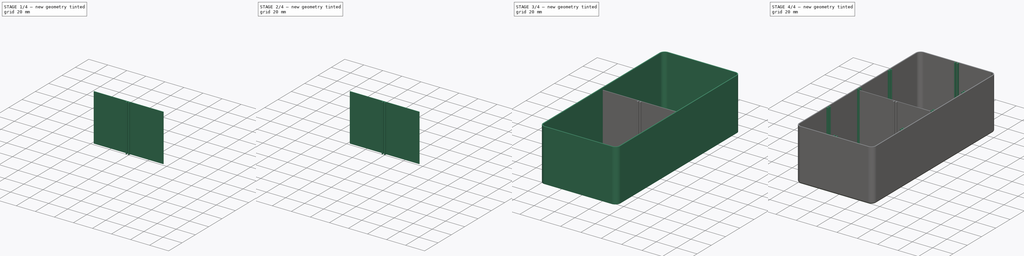
[diagram: build sequence overview — one tinted view per stage of 4, left to right]
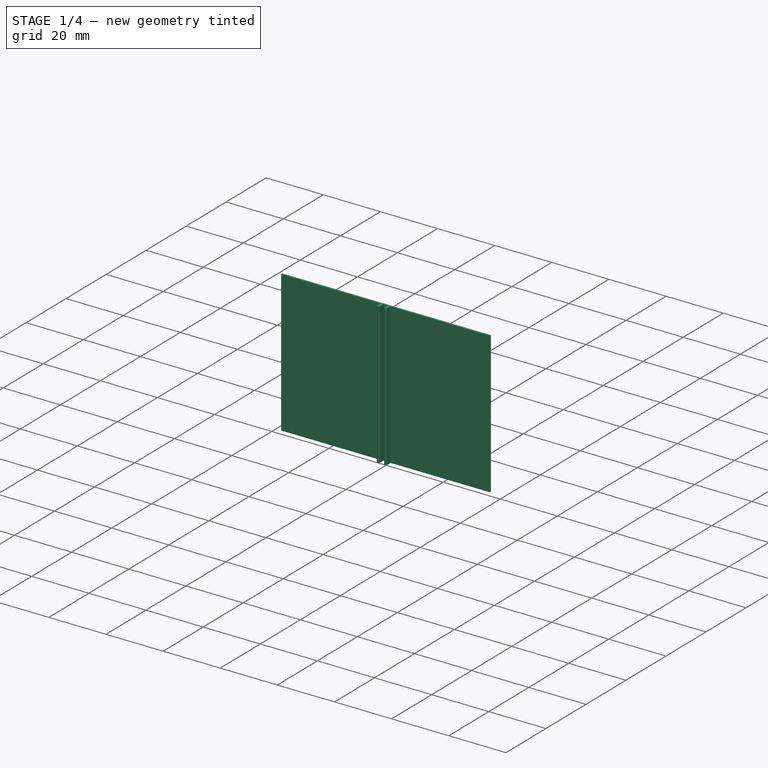
[diagram: stage 1 of 4 — iso view after this stage's code; geometry added in this stage tinted green]
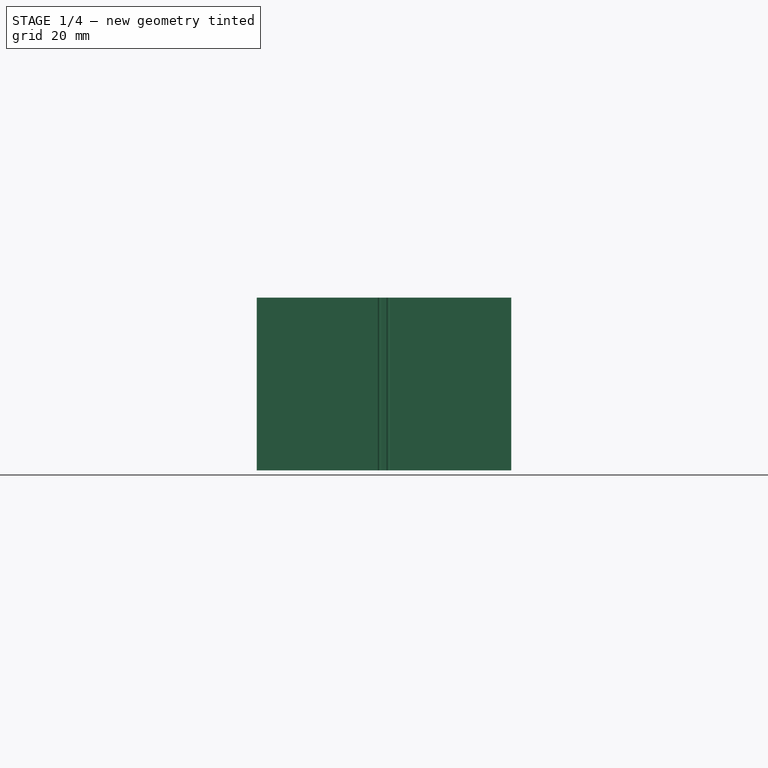
[diagram: stage 1 of 4 — front view after this stage's code; geometry added in this stage tinted green]
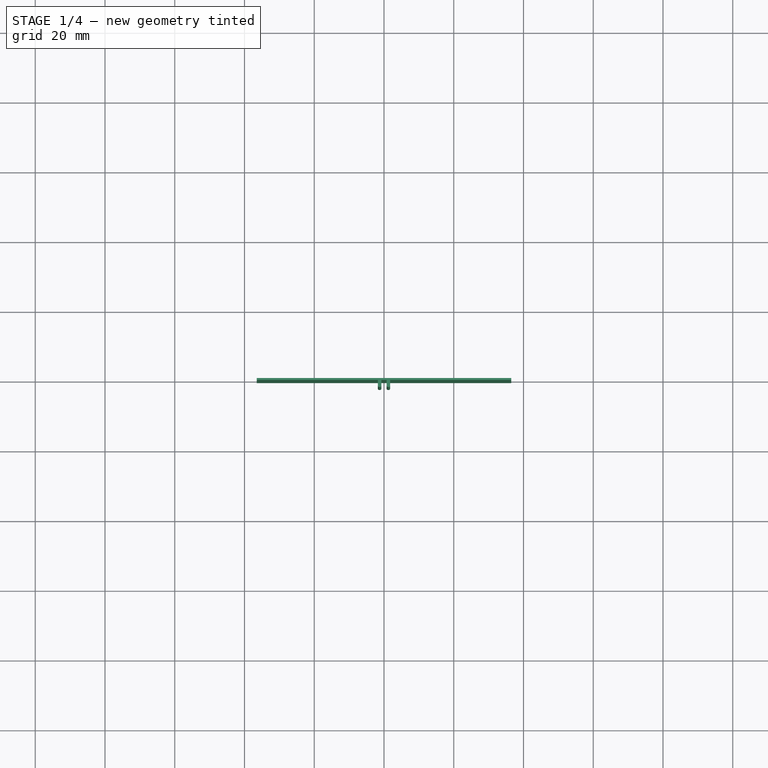
[diagram: stage 1 of 4 — top view after this stage's code; geometry added in this stage tinted green]
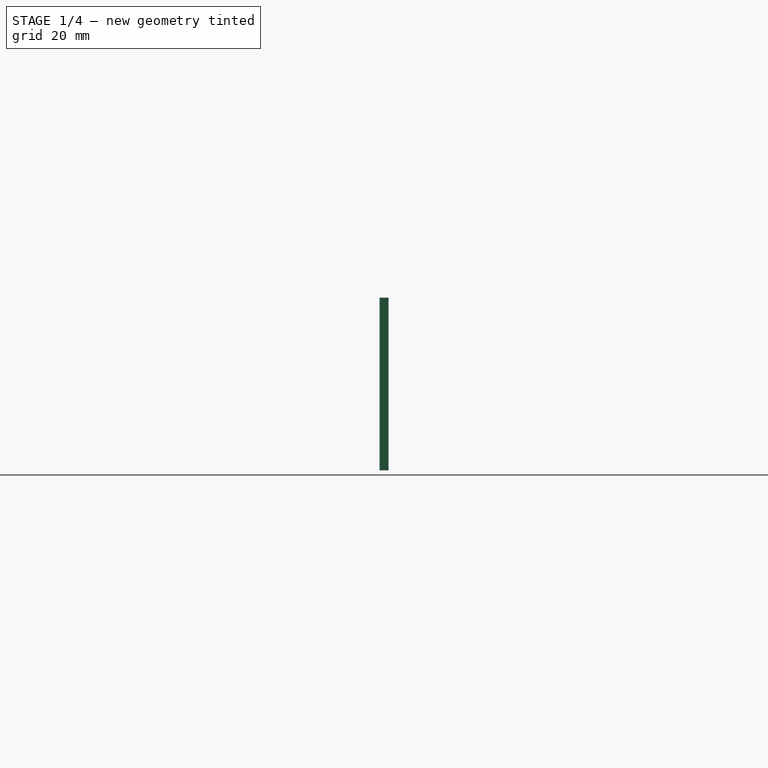
[diagram: stage 1 of 4 — right view after this stage's code; geometry added in this stage tinted green]
FCSTD DOCUMENT  (FreeCAD 0.20R29177 +426 (Git))
Label: 宜家开发板塑料盒-内隔盒
License: All rights reserved
LicenseURL: http://en.wikipedia.org/wiki/All_rights_reserved
objects: Sketcher::SketchObject×5, PartDesign::Pad×5, PartDesign::Fillet×5, PartDesign::Body×5, App::Part×4, PartDesign::Thickness×1
note: 32 computed .brp shape members not serialized (recipe doc carries the construction recipe); baked Part::Feature solids carry a one-line shape summary decoded from their .brp

FEATURE [PartDesign::Body] Body001
  Group = -> [Sketch002,Pad002,Fillet004]
  Origin = -> Origin003
  Placement = pos=(0,43,0) rot=(0,0,1;0rad)
  Tip = -> Fillet004
FEATURE [App::Part] Part001  label="短插片-无槽"
  Group = -> [Body001]
  Origin = -> Origin002
  Placement = pos=(0,0,-241) rot=(0,0,1;0rad)
FEATURE [Sketcher::SketchObject] Sketch003
  FullyConstrained = true
  MapMode = 5
  Support = -> [XY_Plane005]
  sketch-geometry (4):
    g0: LineSegment StartX=-36.5 StartY=0.3 StartZ=0 EndX=36.5 EndY=0.3 EndZ=0
    g1: LineSegment StartX=36.5 StartY=0.3 StartZ=0 EndX=36.5 EndY=-0.3 EndZ=0
    g2: LineSegment StartX=36.5 StartY=-0.3 StartZ=0 EndX=-36.5 EndY=-0.3 EndZ=0
    g3: LineSegment StartX=-36.5 StartY=-0.3 StartZ=0 EndX=-36.5 EndY=0.3 EndZ=0
  constraints (11):
    c: Coincident(g0,g1)
    c: Coincident(g1,g2)
    c: Coincident(g2,g3)
    c: Coincident(g3,g0)
    c: Horizontal(g0)
    c: Horizontal(g2)
    c: Vertical(g1)
    c: Vertical(g3)
    c: Symmetric(g0,g2,g-1)
    c: DistanceY(g3,g3) = 0.6
    c: DistanceX(g0,g0) = 73
FEATURE [PartDesign::Pad] Pad003
  Direction = (0,0,1)
  Length = 49.5
  Length2 = 10
  Profile = -> Sketch003
  ReferenceAxis = -> Sketch003 [N_Axis]
  Type = 0
FEATURE [Sketcher::SketchObject] Sketch004
  ExternalGeometry = -> [Pad003]
  FullyConstrained = true
  MapMode = 5
  Placement = pos=(0,-0.3,0) rot=(1,0,0;1.5708rad)
  Support = -> [Pad003]
  sketch-geometry (8):
    g0: LineSegment StartX=-1.75 StartY=49.5 StartZ=0 EndX=-0.75 EndY=49.5 EndZ=0
    g1: LineSegment StartX=-0.75 StartY=49.5 StartZ=0 EndX=-0.75 EndY=0 EndZ=0
    g2: LineSegment StartX=-0.75 StartY=0 StartZ=0 EndX=-1.75 EndY=0 EndZ=0
    g3: LineSegment StartX=-1.75 StartY=0 StartZ=0 EndX=-1.75 EndY=49.5 EndZ=0
    g4: LineSegment StartX=0.75 StartY=49.5 StartZ=0 EndX=1.75 EndY=49.5 EndZ=0
    g5: LineSegment StartX=1.75 StartY=49.5 StartZ=0 EndX=1.75 EndY=-1.04876e-11 EndZ=0
    g6: LineSegment StartX=1.75 StartY=-1.04876e-11 StartZ=0 EndX=0.75 EndY=-1.04876e-11 EndZ=0
    g7: LineSegment StartX=0.75 StartY=-1.04876e-11 StartZ=0 EndX=0.75 EndY=49.5 EndZ=0
  constraints (23):
    c: Coincident(g0,g1)
    c: Coincident(g1,g2)
    c: Coincident(g2,g3)
    c: Coincident(g3,g0)
    c: Horizontal(g0)
    c: Horizontal(g2)
    c: Vertical(g1)
    c: Vertical(g3)
    c: Coincident(g4,g5)
    c: Coincident(g5,g6)
    c: Coincident(g6,g7)
    c: Coincident(g7,g4)
    c: Horizontal(g4)
    c: Horizontal(g6)
    c: Vertical(g5)
    c: Vertical(g7)
    c: Equal(g0,g4)
    c: Equal(g1,g7)
    c: PointOnObject(g1,g-5)
    c: PointOnObject(g0,g-4)
    c: Distance(g0,g7) = 1.5
    c: Symmetric(g0,g4,g-2)
    c: DistanceX(g6,g6) = 1
FEATURE [PartDesign::Pad] Pad004
  BaseFeature = -> Pad003
  Direction = (0,-1,2e-16)
  Length = 2
  Length2 = 10
  Profile = -> Sketch004
  ReferenceAxis = -> Sketch004 [N_Axis]
  Type = 0
FEATURE [PartDesign::Fillet] Fillet005
  Base = -> Pad004 [Edge37,Edge40,Edge39,Edge38]
  BaseFeature = -> Pad004
  Radius = 0.4
  SupportTransform = false
  UseAllEdges = false
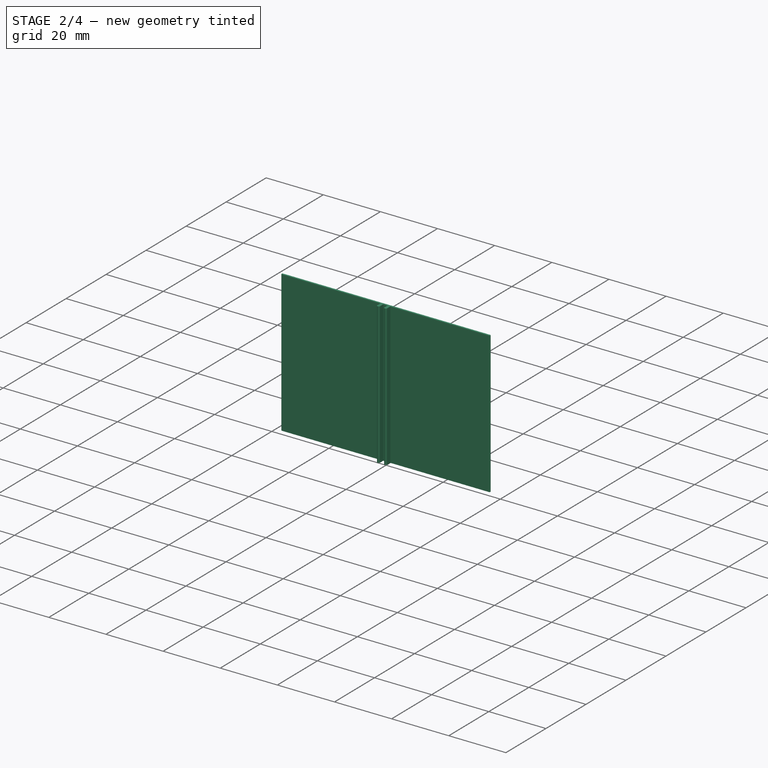
[diagram: stage 2 of 4 — iso view after this stage's code; geometry added in this stage tinted green]
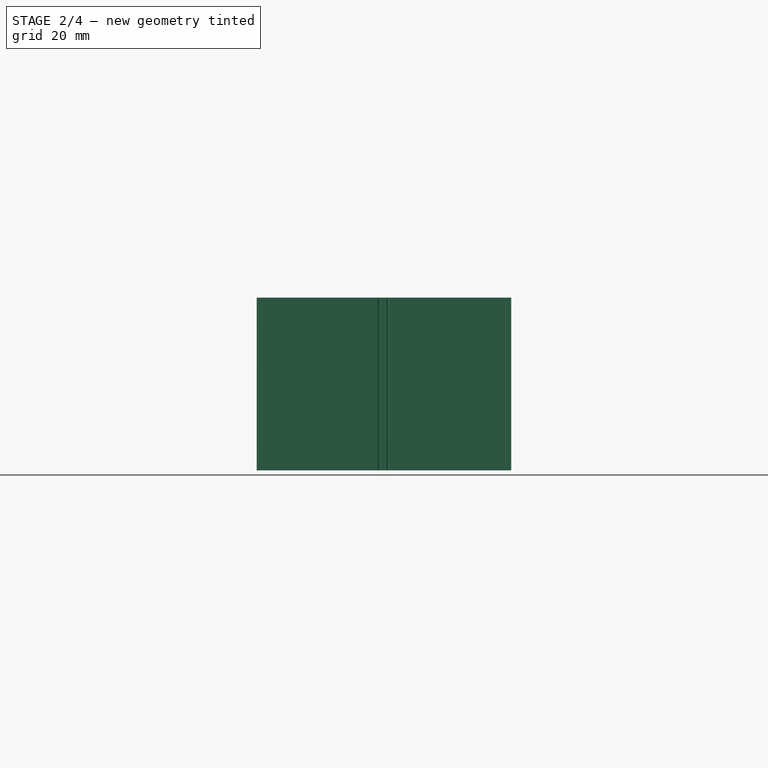
[diagram: stage 2 of 4 — front view after this stage's code; geometry added in this stage tinted green]
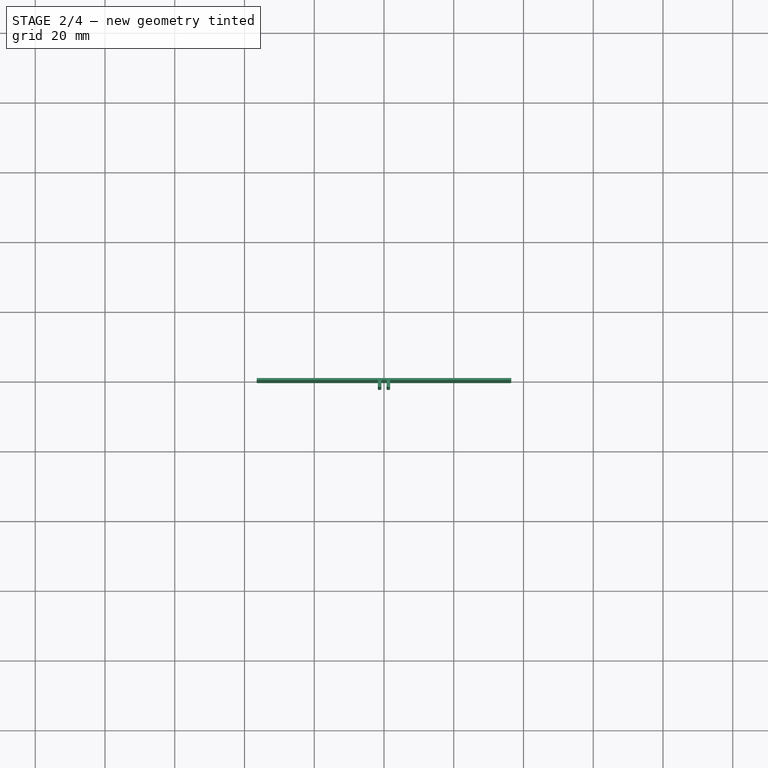
[diagram: stage 2 of 4 — top view after this stage's code; geometry added in this stage tinted green]
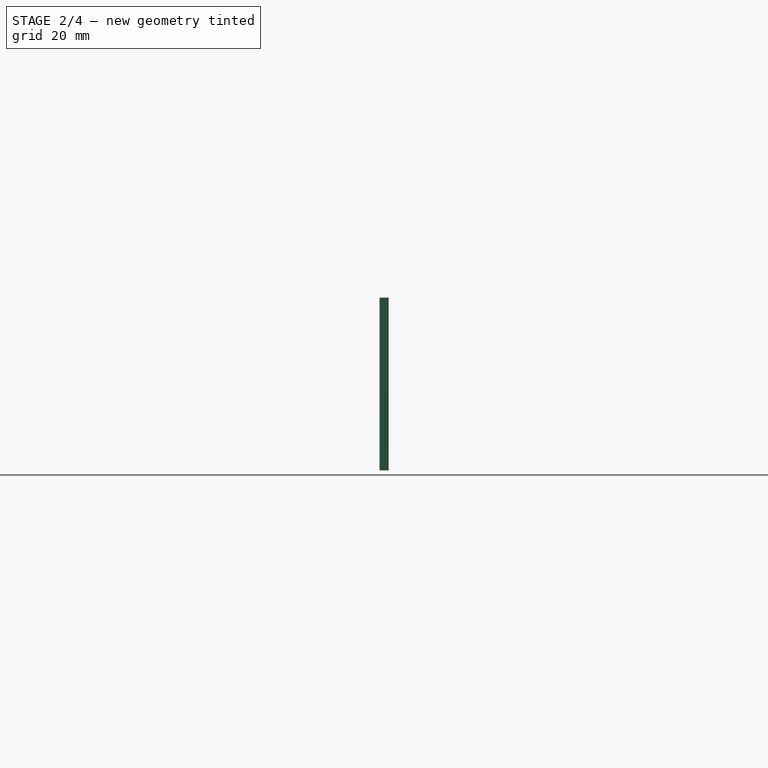
[diagram: stage 2 of 4 — right view after this stage's code; geometry added in this stage tinted green]
FEATURE [Sketcher::SketchObject] Sketch002
  FullyConstrained = true
  MapMode = 5
  Support = -> [XY_Plane003]
  sketch-geometry (4):
    g0: LineSegment StartX=36.5 StartY=-0.3 StartZ=0 EndX=-36.5 EndY=-0.3 EndZ=0
    g1: LineSegment StartX=-36.5 StartY=-0.3 StartZ=0 EndX=-36.5 EndY=0.3 EndZ=0
    g2: LineSegment StartX=-36.5 StartY=0.3 StartZ=0 EndX=36.5 EndY=0.3 EndZ=0
    g3: LineSegment StartX=36.5 StartY=0.3 StartZ=0 EndX=36.5 EndY=-0.3 EndZ=0
  constraints (10):
    c: Coincident(g0,g1)
    c: Coincident(g1,g2)
    c: Coincident(g2,g3)
    c: Coincident(g3,g0)
    c: Horizontal(g2)
    c: Vertical(g3)
    c: Symmetric(g0,g0,g-2)
    c: Symmetric(g0,g1,g-1)
    c: DistanceY(g1,g1) = 0.6
    c: DistanceX(g2,g2) = 73
FEATURE [PartDesign::Pad] Pad002
  Direction = (0,0,1)
  Length = 49.5
  Length2 = 10
  Profile = -> Sketch002
  ReferenceAxis = -> Sketch002 [N_Axis]
  Type = 0
FEATURE [PartDesign::Body] Body
  Group = -> [Sketch,Pad,Thickness,Sketch001,Pad001,Fillet,Fillet003]
  Origin = -> Origin
  Placement = pos=(0,0,-295) rot=(0,0,1;0rad)
  Tip = -> Fillet003
FEATURE [App::Part] Part  label="盒体"
  Group = -> [Body]
  Origin = -> Origin001
FEATURE [PartDesign::Fillet] Fillet004
  Base = -> Pad002 [Edge5,Edge2,Edge10,Face6,Edge4,Edge9,Edge3,Edge8,Edge1]
  BaseFeature = -> Pad002
  Radius = 0.2
  SupportTransform = false
  UseAllEdges = false
FEATURE [PartDesign::Fillet] Fillet006
  Base = -> Fillet005 [Edge39,Edge28,Edge27,Edge29]
  BaseFeature = -> Fillet005
  Radius = 0.2
  SupportTransform = false
  UseAllEdges = false
FEATURE [PartDesign::Body] Body002
  Group = -> [Sketch003,Pad003,Sketch004,Pad004,Fillet005,Fillet006]
  Origin = -> Origin005
  Placement = pos=(0,-44,-241) rot=(0,0,1;0rad)
  Tip = -> Fillet006
FEATURE [PartDesign::Body] Body003
  Origin = -> Origin007
FEATURE [App::Part] Part003  label="长插片-无槽"
  Group = -> [Body003]
  Origin = -> Origin006
FEATURE [PartDesign::Body] Body004
  Origin = -> Origin008
FEATURE [App::Part] Part002  label="短插片-单槽"
  Group = -> [Body002,Body004]
  Origin = -> Origin004
  Placement = pos=(0,44,0) rot=(0,0,1;0rad)
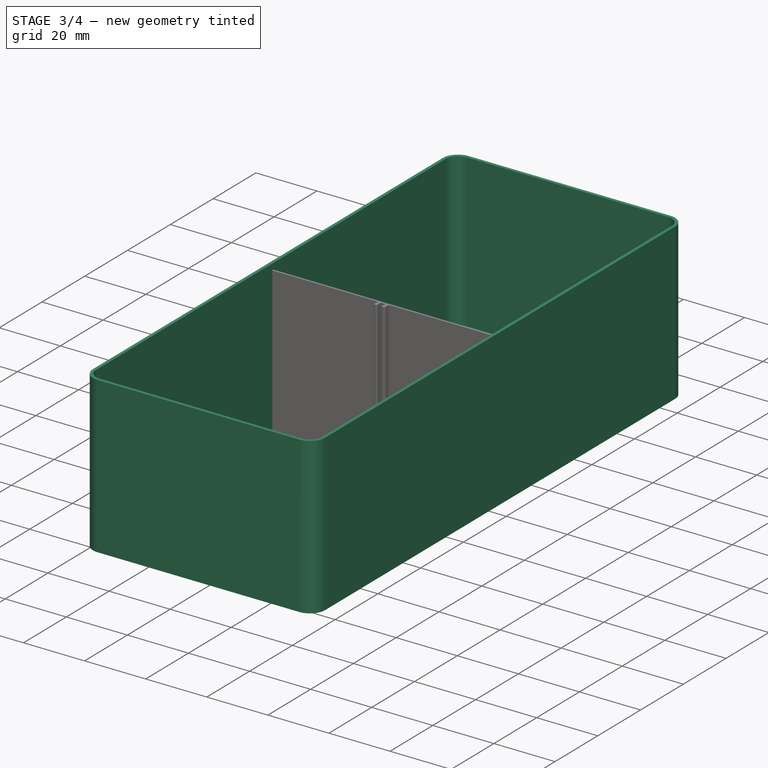
[diagram: stage 3 of 4 — iso view after this stage's code; geometry added in this stage tinted green]
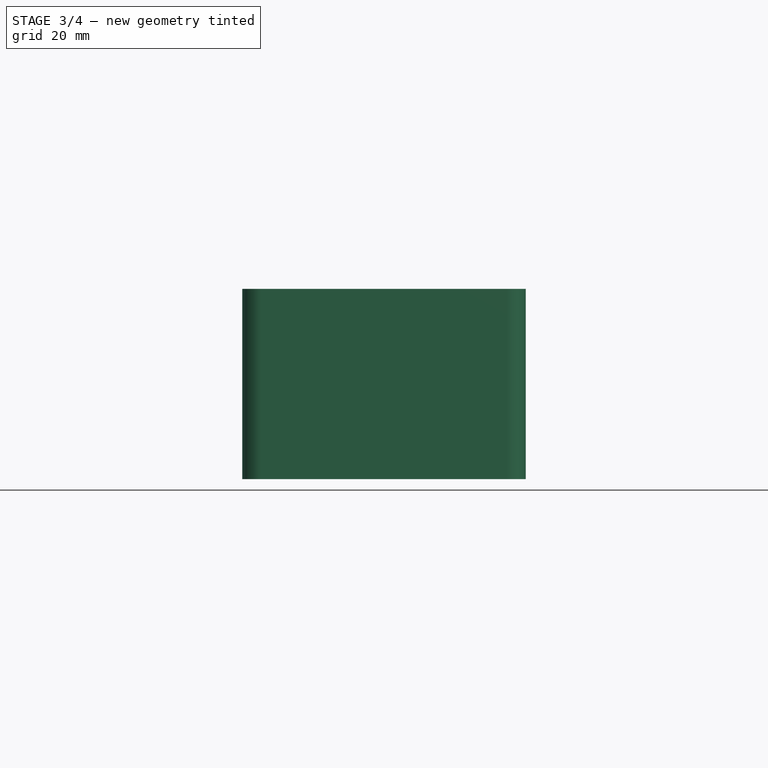
[diagram: stage 3 of 4 — front view after this stage's code; geometry added in this stage tinted green]
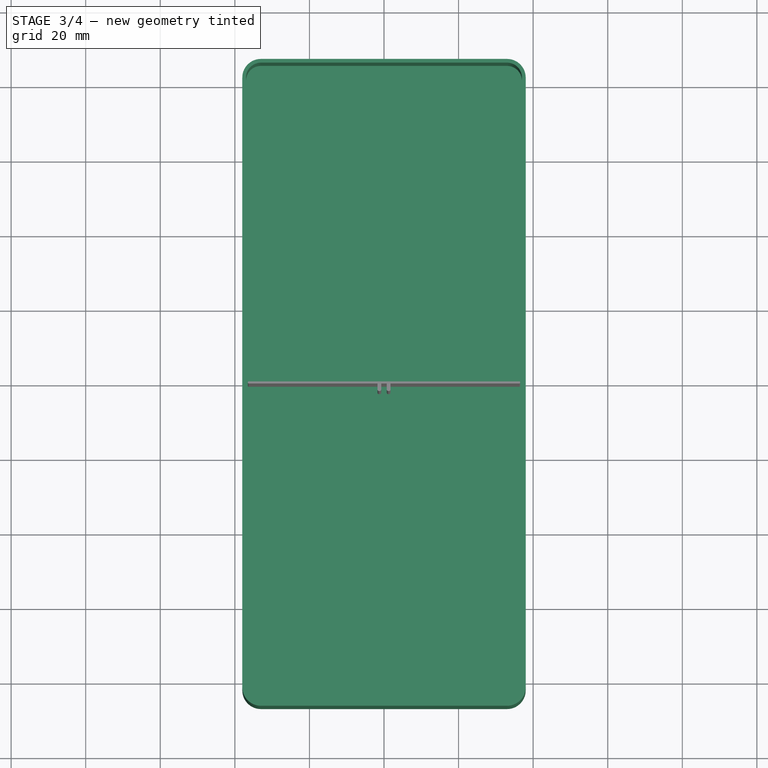
[diagram: stage 3 of 4 — top view after this stage's code; geometry added in this stage tinted green]
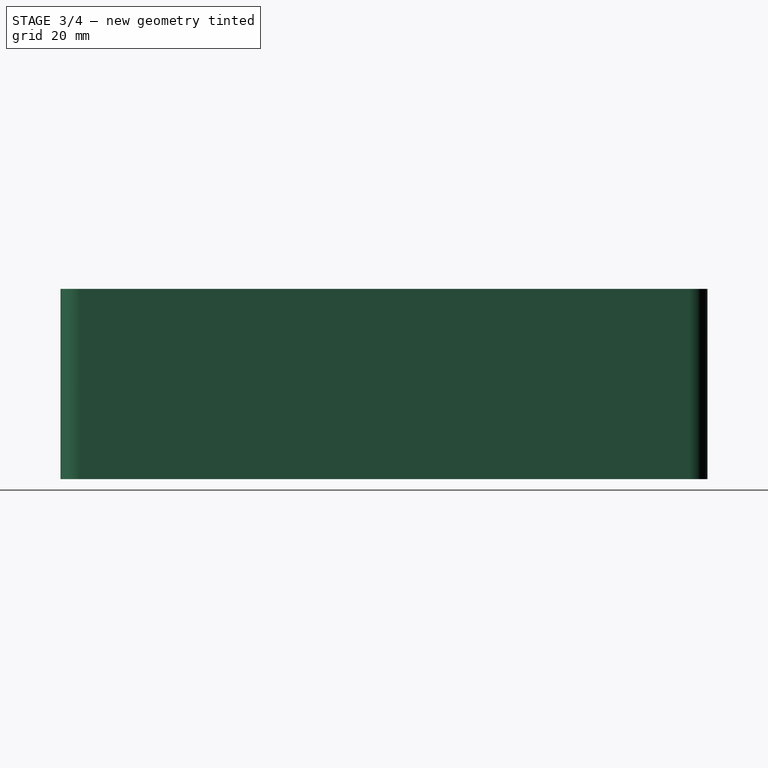
[diagram: stage 3 of 4 — right view after this stage's code; geometry added in this stage tinted green]
FEATURE [Sketcher::SketchObject] Sketch
  FullyConstrained = true
  MapMode = 5
  Support = -> [XY_Plane]
  sketch-geometry (8):
    g0: LineSegment StartX=-33 StartY=86.75 StartZ=0 EndX=33 EndY=86.75 EndZ=0
    g1: LineSegment StartX=38 StartY=81.75 StartZ=0 EndX=38 EndY=-81.75 EndZ=0
    g2: LineSegment StartX=33 StartY=-86.75 StartZ=0 EndX=-33 EndY=-86.75 EndZ=0
    g3: LineSegment StartX=-38 StartY=-81.75 StartZ=0 EndX=-38 EndY=81.75 EndZ=0
    g4: ArcOfCircle CenterX=-33 CenterY=-81.75 CenterZ=0 NormalX=0 NormalY=0 NormalZ=1 AngleXU=0 Radius=5 StartAngle=3.14159 EndAngle=4.71239
    g5: ArcOfCircle CenterX=33 CenterY=-81.75 CenterZ=0 NormalX=0 NormalY=0 NormalZ=1 AngleXU=0 Radius=5 StartAngle=4.71239 EndAngle=6.28319
    g6: ArcOfCircle CenterX=33 CenterY=81.75 CenterZ=0 NormalX=0 NormalY=0 NormalZ=1 AngleXU=0 Radius=5 StartAngle=-9e-16 EndAngle=1.5708
    g7: ArcOfCircle CenterX=-33 CenterY=81.75 CenterZ=0 NormalX=0 NormalY=0 NormalZ=1 AngleXU=0 Radius=5 StartAngle=1.5708 EndAngle=3.14159
  constraints (19):
    c: Horizontal(g0)
    c: Horizontal(g2)
    c: Vertical(g1)
    c: Vertical(g3)
    c: Tangent(g2,g4) = 1.5708
    c: Tangent(g3,g4) = 1.5708
    c: Tangent(g2,g5) = 1.5708
    c: Tangent(g1,g5) = 1.5708
    c: Tangent(g0,g6) = 1.5708
    c: Tangent(g1,g6) = 1.5708
    c: Tangent(g3,g7) = 1.5708
    c: Tangent(g0,g7) = 1.5708
    c: Radius(g7) = 5
    c: Radius(g4) = 5
    c: Radius(g5) = 5
    c: Radius(g6) = 5
    c: Distance(g0,g2) = 173.5
    c: Distance(g1,g3) = 76
    c: Symmetric(g2,g0,g-1)
FEATURE [PartDesign::Pad] Pad
  Direction = (0,0,1)
  Length = 51
  Length2 = 10
  Profile = -> Sketch
  ReferenceAxis = -> Sketch [N_Axis]
  Type = 0
FEATURE [PartDesign::Thickness] Thickness
  Base = -> Pad [Face10]
  BaseFeature = -> Pad
  Intersection = false
  Join = 0
  Mode = 0
  Reversed = true
  SupportTransform = false
  Value = 1
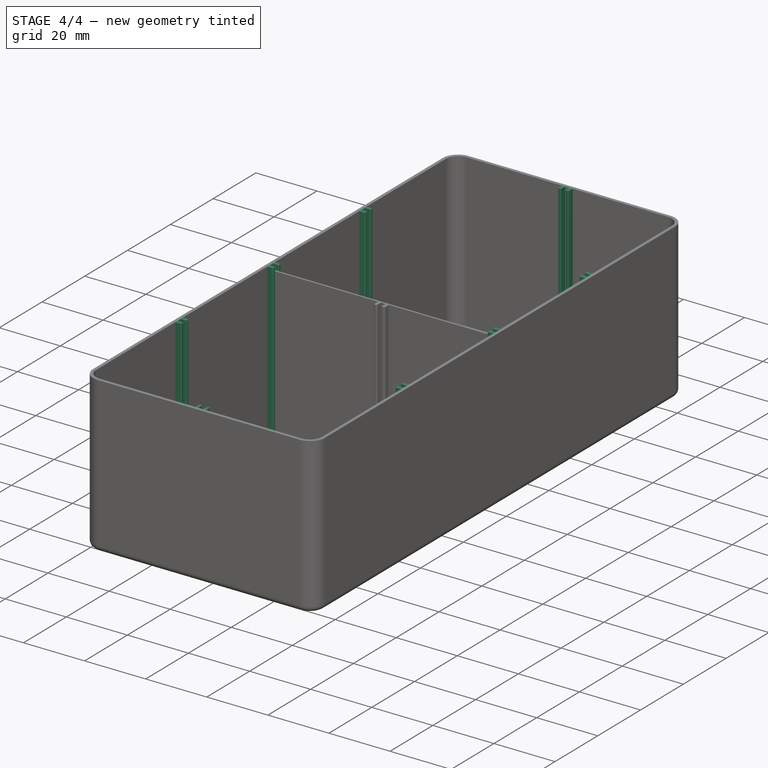
[diagram: stage 4 of 4 — iso view after this stage's code; geometry added in this stage tinted green]
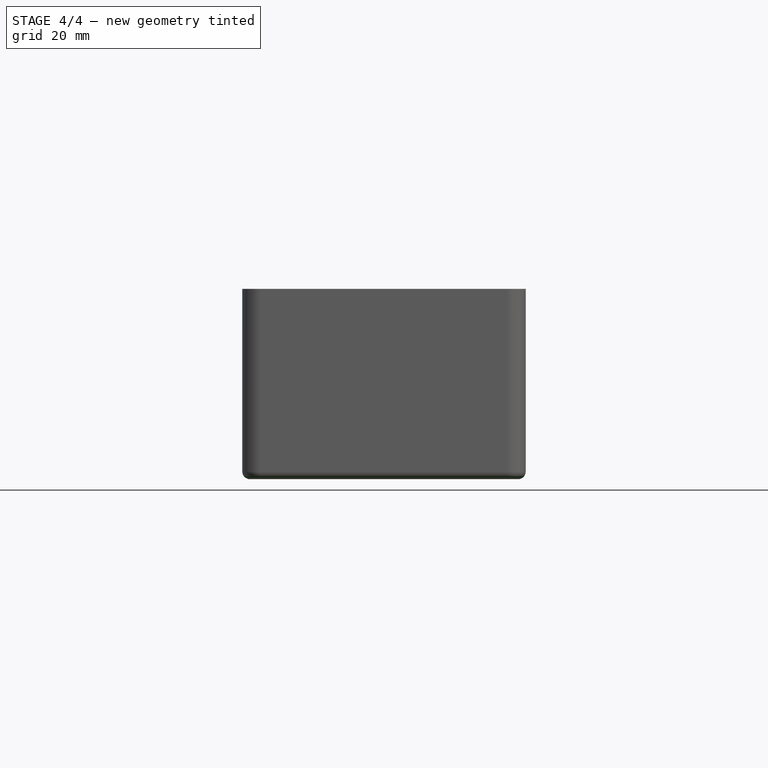
[diagram: stage 4 of 4 — front view after this stage's code; geometry added in this stage tinted green]
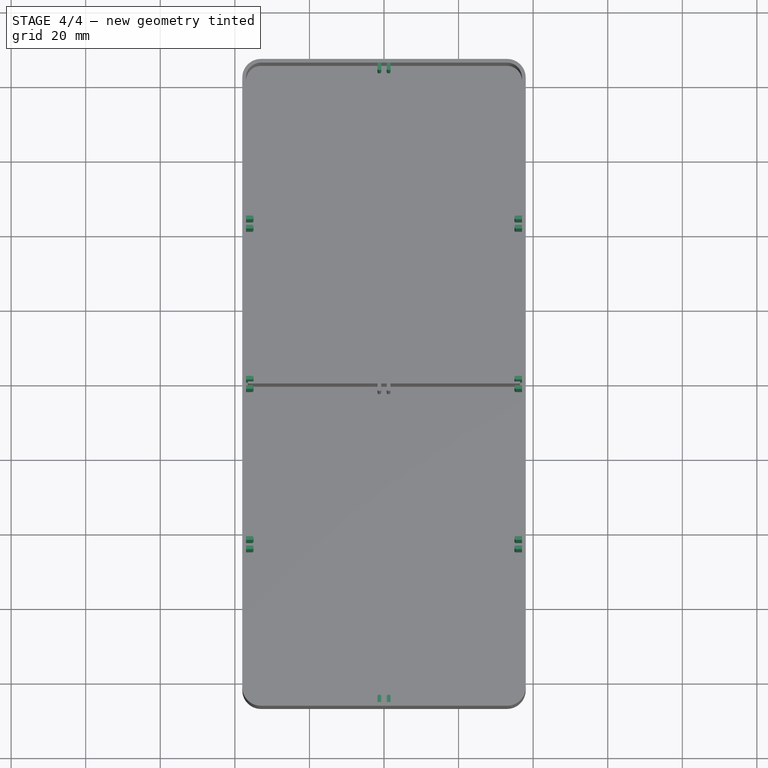
[diagram: stage 4 of 4 — top view after this stage's code; geometry added in this stage tinted green]
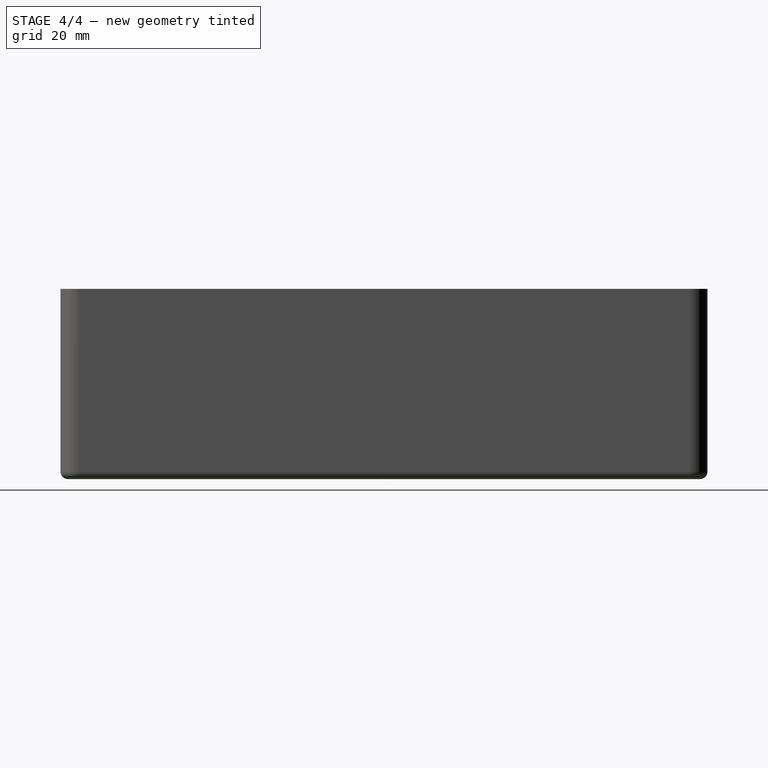
[diagram: stage 4 of 4 — right view after this stage's code; geometry added in this stage tinted green]
FEATURE [Sketcher::SketchObject] Sketch001
  ExternalGeometry = -> [Thickness]
  FullyConstrained = true
  MapMode = 5
  Placement = pos=(0,0,1) rot=(0,0,1;0rad)
  Support = -> [Thickness]
  sketch-geometry (64):
    g0: LineSegment StartX=-37 StartY=43.75 StartZ=0 EndX=-35 EndY=43.75 EndZ=0
    g1: LineSegment StartX=-35 StartY=43.75 StartZ=0 EndX=-35 EndY=44.75 EndZ=0
    g2: LineSegment StartX=-35 StartY=44.75 StartZ=0 EndX=-37 EndY=44.75 EndZ=0
    g3: LineSegment StartX=-37 StartY=44.75 StartZ=0 EndX=-37 EndY=43.75 EndZ=0
    g4: LineSegment StartX=-37 StartY=42.25 StartZ=0 EndX=-35 EndY=42.25 EndZ=0
    g5: LineSegment StartX=-35 StartY=42.25 StartZ=0 EndX=-35 EndY=41.25 EndZ=0
    g6: LineSegment StartX=-35 StartY=41.25 StartZ=0 EndX=-37 EndY=41.25 EndZ=0
    g7: LineSegment StartX=-37 StartY=41.25 StartZ=0 EndX=-37 EndY=42.25 EndZ=0
    g8: LineSegment StartX=35 StartY=44.75 StartZ=0 EndX=37 EndY=44.75 EndZ=0
    g9: LineSegment StartX=37 StartY=44.75 StartZ=0 EndX=37 EndY=43.75 EndZ=0
    g10: LineSegment StartX=37 StartY=43.75 StartZ=0 EndX=35 EndY=43.75 EndZ=0
    g11: LineSegment StartX=35 StartY=43.75 StartZ=0 EndX=35 EndY=44.75 EndZ=0
    g12: LineSegment StartX=35 StartY=42.25 StartZ=0 EndX=37 EndY=42.25 EndZ=0
    g13: LineSegment StartX=37 StartY=42.25 StartZ=0 EndX=37 EndY=41.25 EndZ=0
    g14: LineSegment StartX=37 StartY=41.25 StartZ=0 EndX=35 EndY=41.25 EndZ=0
    g15: LineSegment StartX=35 StartY=41.25 StartZ=0 EndX=35 EndY=42.25 EndZ=0
    g16: LineSegment StartX=-37 StartY=-41.25 StartZ=0 EndX=-35 EndY=-41.25 EndZ=0
    g17: LineSegment StartX=-35 StartY=-41.25 StartZ=0 EndX=-35 EndY=-42.25 EndZ=0
    g18: LineSegment StartX=-35 StartY=-42.25 StartZ=0 EndX=-37 EndY=-42.25 EndZ=0
    g19: LineSegment StartX=-37 StartY=-42.25 StartZ=0 EndX=-37 EndY=-41.25 EndZ=0
    g20: LineSegment StartX=-37 StartY=-43.75 StartZ=0 EndX=-35 EndY=-43.75 EndZ=0
    g21: LineSegment StartX=-35 StartY=-43.75 StartZ=0 EndX=-35 EndY=-44.75 EndZ=0
    g22: LineSegment StartX=-35 StartY=-44.75 StartZ=0 EndX=-37 EndY=-44.75 EndZ=0
    g23: LineSegment StartX=-37 StartY=-44.75 StartZ=0 EndX=-37 EndY=-43.75 EndZ=0
    g24: LineSegment StartX=-37 StartY=1.75 StartZ=0 EndX=-35 EndY=1.75 EndZ=0
    g25: LineSegment StartX=-35 StartY=1.75 StartZ=0 EndX=-35 EndY=0.75 EndZ=0
    g26: LineSegment StartX=-35 StartY=0.75 StartZ=0 EndX=-37 EndY=0.75 EndZ=0
    g27: LineSegment StartX=-37 StartY=0.75 StartZ=0 EndX=-37 EndY=1.75 EndZ=0
    g28: LineSegment StartX=-37 StartY=-0.75 StartZ=0 EndX=-35 EndY=-0.75 EndZ=0
    g29: LineSegment StartX=-35 StartY=-0.75 StartZ=0 EndX=-35 EndY=-1.75 EndZ=0
    g30: LineSegment StartX=-35 StartY=-1.75 StartZ=0 EndX=-37 EndY=-1.75 EndZ=0
    g31: LineSegment StartX=-37 StartY=-1.75 StartZ=0 EndX=-37 EndY=-0.75 EndZ=0
    g32: LineSegment StartX=35 StartY=1.75 StartZ=0 EndX=37 EndY=1.75 EndZ=0
    g33: LineSegment StartX=37 StartY=1.75 StartZ=0 EndX=37 EndY=0.75 EndZ=0
    g34: LineSegment StartX=37 StartY=0.75 StartZ=0 EndX=35 EndY=0.75 EndZ=0
    g35: LineSegment StartX=35 StartY=0.75 StartZ=0 EndX=35 EndY=1.75 EndZ=0
    g36: LineSegment StartX=35 StartY=-0.75 StartZ=0 EndX=37 EndY=-0.75 EndZ=0
    g37: LineSegment StartX=37 StartY=-0.75 StartZ=0 EndX=37 EndY=-1.75 EndZ=0
    g38: LineSegment StartX=37 StartY=-1.75 StartZ=0 EndX=35 EndY=-1.75 EndZ=0
    g39: LineSegment StartX=35 StartY=-1.75 StartZ=0 EndX=35 EndY=-0.75 EndZ=0
    g40: LineSegment StartX=35 StartY=-41.25 StartZ=0 EndX=37 EndY=-41.25 EndZ=0
    g41: LineSegment StartX=37 StartY=-41.25 StartZ=0 EndX=37 EndY=-42.25 EndZ=0
    g42: LineSegment StartX=37 StartY=-42.25 StartZ=0 EndX=35 EndY=-42.25 EndZ=0
    g43: LineSegment StartX=35 StartY=-42.25 StartZ=0 EndX=35 EndY=-41.25 EndZ=0
    g44: LineSegment StartX=35 StartY=-43.75 StartZ=0 EndX=37 EndY=-43.75 EndZ=0
    g45: LineSegment StartX=37 StartY=-43.75 StartZ=0 EndX=37 EndY=-44.75 EndZ=0
    g46: LineSegment StartX=37 StartY=-44.75 StartZ=0 EndX=35 EndY=-44.75 EndZ=0
    g47: LineSegment StartX=35 StartY=-44.75 StartZ=0 EndX=35 EndY=-43.75 EndZ=0
    g48: LineSegment StartX=-1.75 StartY=-83.75 StartZ=0 EndX=-0.75 EndY=-83.75 EndZ=0
    g49: LineSegment StartX=-0.75 StartY=-83.75 StartZ=0 EndX=-0.75 EndY=-85.75 EndZ=0
    g50: LineSegment StartX=-0.75 StartY=-85.75 StartZ=0 EndX=-1.75 EndY=-85.75 EndZ=0
    g51: LineSegment StartX=-1.75 StartY=-85.75 StartZ=0 EndX=-1.75 EndY=-83.75 EndZ=0
    g52: LineSegment StartX=0.75 StartY=-83.75 StartZ=0 EndX=1.75 EndY=-83.75 EndZ=0
    g53: LineSegment StartX=1.75 StartY=-83.75 StartZ=0 EndX=1.75 EndY=-85.75 EndZ=0
    g54: LineSegment StartX=1.75 StartY=-85.75 StartZ=0 EndX=0.75 EndY=-85.75 EndZ=0
    g55: LineSegment StartX=0.75 StartY=-85.75 StartZ=0 EndX=0.75 EndY=-83.75 EndZ=0
    g56: LineSegment StartX=-1.75 StartY=85.75 StartZ=0 EndX=-0.75 EndY=85.75 EndZ=0
    g57: LineSegment StartX=-0.75 StartY=85.75 StartZ=0 EndX=-0.75 EndY=83.75 EndZ=0
    g58: LineSegment StartX=-0.75 StartY=83.75 StartZ=0 EndX=-1.75 EndY=83.75 EndZ=0
    g59: LineSegment StartX=-1.75 StartY=83.75 StartZ=0 EndX=-1.75 EndY=85.75 EndZ=0
    g60: LineSegment StartX=0.75 StartY=85.75 StartZ=0 EndX=1.75 EndY=85.75 EndZ=0
    g61: LineSegment StartX=1.75 StartY=85.75 StartZ=0 EndX=1.75 EndY=83.75 EndZ=0
    g62: LineSegment StartX=1.75 StartY=83.75 StartZ=0 EndX=0.75 EndY=83.75 EndZ=0
    g63: LineSegment StartX=0.75 StartY=83.75 StartZ=0 EndX=0.75 EndY=85.75 EndZ=0
  constraints (188):
    c: Coincident(g0,g1)
    c: Coincident(g1,g2)
    c: Coincident(g2,g3)
    c: Coincident(g3,g0)
    c: Horizontal(g0)
    c: Horizontal(g2)
    c: Vertical(g1)
    c: Vertical(g3)
    c: Coincident(g4,g5)
    c: Coincident(g5,g6)
    c: Coincident(g6,g7)
    c: Coincident(g7,g4)
    c: Horizontal(g4)
    c: Horizontal(g6)
    c: Vertical(g5)
    c: Vertical(g7)
    c: Coincident(g8,g9)
    c: Coincident(g9,g10)
    c: Coincident(g10,g11)
    c: Coincident(g11,g8)
    c: Horizontal(g8)
    c: Horizontal(g10)
    c: Vertical(g9)
    c: Vertical(g11)
    c: Coincident(g12,g13)
    c: Coincident(g13,g14)
    c: Coincident(g14,g15)
    c: Coincident(g15,g12)
    c: Horizontal(g12)
    c: Horizontal(g14)
    c: Vertical(g13)
    c: Vertical(g15)
    c: Coincident(g16,g17)
    c: Coincident(g17,g18)
    c: Coincident(g18,g19)
    c: Coincident(g19,g16)
    c: Horizontal(g16)
    c: Horizontal(g18)
    c: Vertical(g17)
    c: Vertical(g19)
    c: Coincident(g20,g21)
    c: Coincident(g21,g22)
    c: Coincident(g22,g23)
    c: Coincident(g23,g20)
    c: Horizontal(g20)
    c: Horizontal(g22)
    c: Vertical(g21)
    c: Vertical(g23)
    c: Coincident(g24,g25)
    c: Coincident(g25,g26)
    c: Coincident(g26,g27)
    c: Coincident(g27,g24)
    c: Horizontal(g24)
    c: Horizontal(g26)
    c: Vertical(g25)
    c: Vertical(g27)
    c: Coincident(g28,g29)
    c: Coincident(g29,g30)
    c: Coincident(g30,g31)
    c: Coincident(g31,g28)
    c: Horizontal(g28)
    c: Horizontal(g30)
    c: Vertical(g29)
    c: Vertical(g31)
    c: Coincident(g32,g33)
    c: Coincident(g33,g34)
    c: Coincident(g34,g35)
    c: Coincident(g35,g32)
    c: Horizontal(g32)
    c: Horizontal(g34)
    c: Vertical(g33)
    c: Vertical(g35)
    c: Coincident(g36,g37)
    c: Coincident(g37,g38)
    c: Coincident(g38,g39)
    c: Coincident(g39,g36)
    c: Horizontal(g36)
    c: Horizontal(g38)
    c: Vertical(g37)
    c: Vertical(g39)
    c: Coincident(g40,g41)
    c: Coincident(g41,g42)
    c: Coincident(g42,g43)
    c: Coincident(g43,g40)
    c: Horizontal(g40)
    c: Horizontal(g42)
    c: Vertical(g41)
    c: Vertical(g43)
    c: Coincident(g44,g45)
    c: Coincident(g45,g46)
    c: Coincident(g46,g47)
    c: Coincident(g47,g44)
    c: Horizontal(g44)
    c: Horizontal(g46)
    c: Vertical(g45)
    c: Vertical(g47)
    c: Equal(g27,g31)
    c: Equal(g31,g35)
    c: Equal(g35,g39)
    c: Equal(g39,g43)
    c: Equal(g43,g47)
    c: Equal(g47,g21)
    c: Equal(g21,g17)
    c: Equal(g17,g13)
    c: Equal(g13,g9)
    c: Equal(g9,g5)
    c: Equal(g5,g1)
    c: Equal(g2,g4)
    c: Equal(g4,g8)
    c: Equal(g8,g12)
    c: Equal(g12,g16)
    c: Equal(g16,g20)
    c: Equal(g20,g44)
    c: Equal(g44,g40)
    c: Equal(g40,g36)
    c: Equal(g36,g32)
    c: Equal(g32,g28)
    c: Equal(g28,g26)
    c: DistanceX(g22,g22) = 2
    c: DistanceY(g23,g23) = 1
    c: Vertical(g20,g18)
    c: Distance(g20,g18) = 1.5
    c: Vertical(g12,g10)
    c: Distance(g12,g10) = 1.5
    c: Vertical(g2,g4)
    c: Distance(g28,g26) = 1.5
    c: Distance(g36,g34) = 1.5
    c: Vertical(g41,g44)
    c: Distance(g42,g44) = 1.5
    c: Symmetric(g28,g25,g-1)
    c: Symmetric(g36,g34,g-1)
    c: PointOnObject(g30,g-3)
    c: PointOnObject(g37,g-4)
    c: PointOnObject(g22,g-3)
    c: PointOnObject(g41,g-4)
    c: PointOnObject(g2,g-3)
    c: PointOnObject(g8,g-4)
    c: Distance(g4,g0) = 1.5
    c: Horizontal(g46,g21)
    c: Distance(g46,g-6) = 41
    c: Distance(g8,g-5) = 41
    c: Horizontal(g5,g14)
    c: Coincident(g48,g49)
    c: Coincident(g49,g50)
    c: Coincident(g50,g51)
    c: Coincident(g51,g48)
    c: Horizontal(g48)
    c: Horizontal(g50)
    c: Vertical(g49)
    c: Vertical(g51)
    c: Coincident(g52,g53)
    c: Coincident(g53,g54)
    c: Coincident(g54,g55)
    c: Coincident(g55,g52)
    c: Horizontal(g52)
    c: Horizontal(g54)
    c: Vertical(g53)
    c: Vertical(g55)
    c: Coincident(g56,g57)
    c: Coincident(g57,g58)
    c: Coincident(g58,g59)
    c: Coincident(g59,g56)
    c: Horizontal(g56)
    c: Horizontal(g58)
    c: Vertical(g57)
    c: Vertical(g59)
    c: Coincident(g60,g61)
    c: Coincident(g61,g62)
    c: Coincident(g62,g63)
    c: Coincident(g63,g60)
    c: Horizontal(g60)
    c: Horizontal(g62)
    c: Vertical(g61)
    c: Vertical(g63)
    c: Equal(g53,g49)
    c: Equal(g49,g57)
    c: Equal(g57,g61)
    c: Equal(g61,g22)
    c: Equal(g48,g52)
    c: Equal(g52,g58)
    c: Equal(g58,g62)
    c: Equal(g62,g21)
    c: Distance(g52,g49) = 1.5
    c: Distance(g56,g63) = 1.5
    c: Symmetric(g54,g49,g-2)
    c: PointOnObject(g50,g-6)
    c: Symmetric(g60,g56,g-2)
    c: PointOnObject(g56,g-5)
FEATURE [PartDesign::Pad] Pad001
  BaseFeature = -> Thickness
  Direction = (0,0,1)
  Length = 50
  Length2 = 10
  Profile = -> Sketch001
  ReferenceAxis = -> Sketch001 [N_Axis]
  Type = 0
FEATURE [PartDesign::Fillet] Fillet
  Base = -> Pad001 [Edge3]
  BaseFeature = -> Pad001
  Radius = 2
  SupportTransform = false
  UseAllEdges = false
FEATURE [PartDesign::Fillet] Fillet003
  Base = -> Fillet [Edge269,Edge270,Edge271,Edge272,Edge257,Edge258,Edge259,Edge260,Edge261,Edge262,Edge263,Edge264,Edge265,Edge266,Edge267,Edge268,Edge252,Edge251,Edge250,Edge249,Edge248,Edge247,Edge246,Edge245,Edge244,Edge243,Edge242,Edge193,Edge256,Edge255,Edge254,Edge253]
  BaseFeature = -> Fillet
  Radius = 0.4
  SupportTransform = false
  UseAllEdges = false
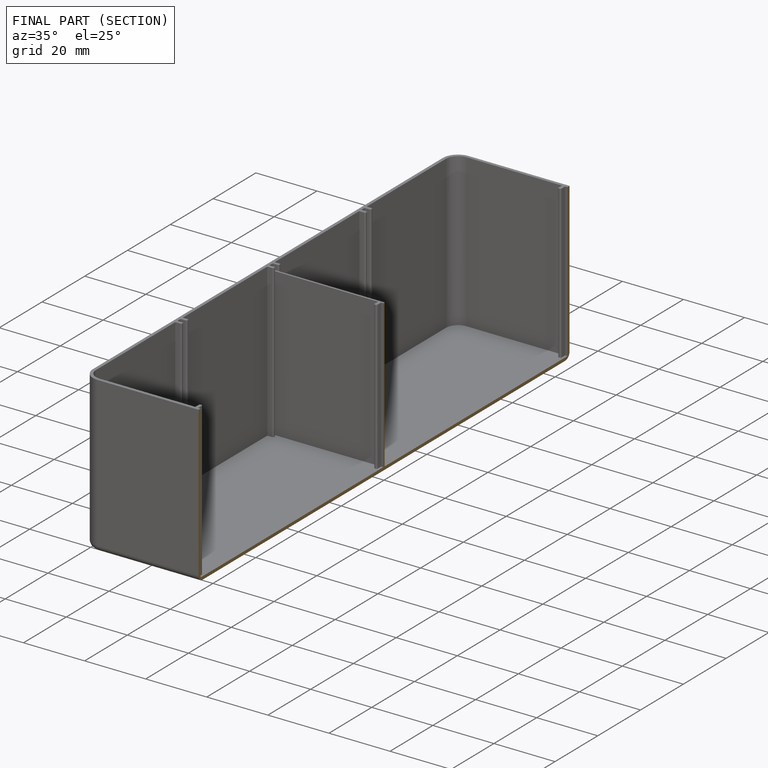
[diagram: finished part — half-section view (interior)]
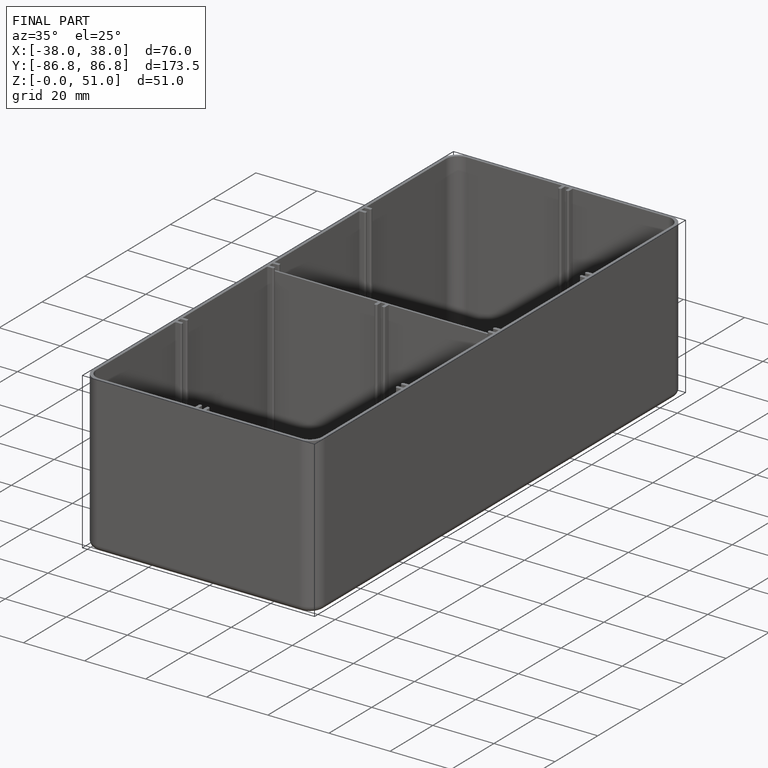
[diagram: finished part — iso view with bounding-box wireframe]
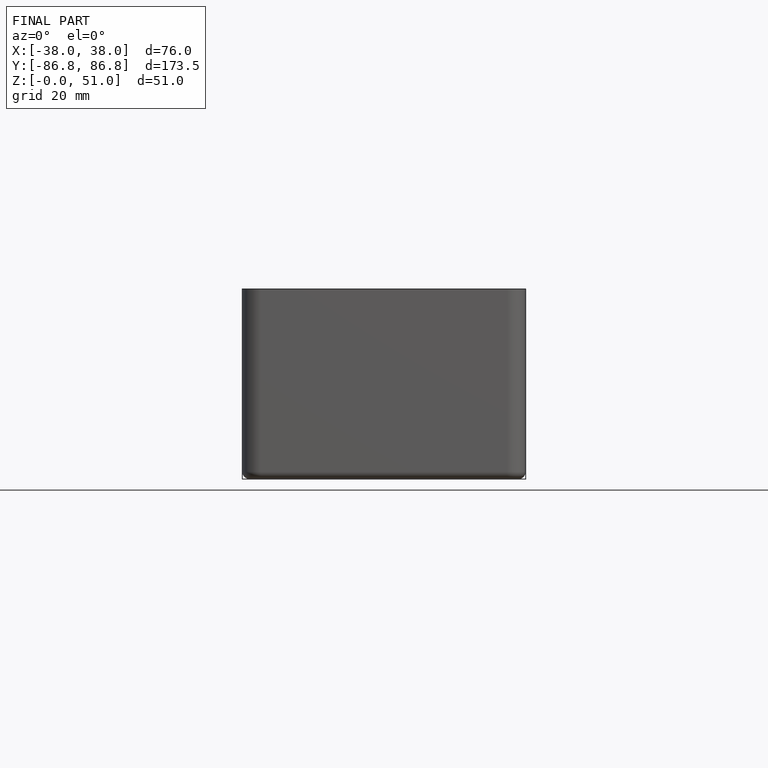
[diagram: finished part — front view with bounding-box wireframe]
